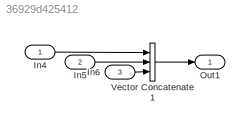
MODEL slx_36929d425412
KIND model
CONFIG AbsTol = auto
CONFIG EnableMultiTasking = on
CONFIG FixedStep = 0.1
CONFIG MaxStep = 1
CONFIG MinStep = auto
CONFIG RelTol = 1e-3
CONFIG SampleTimeConstraint = Unconstrained
CONFIG Solver = FixedStepAuto
CONFIG SolverName = FixedStepAuto
CONFIG StartTime = 0.0
CONFIG StopTime = 0
BLOCK [Inport] In4
  IconDisplay = Port number
  OutDataTypeStr = double
BLOCK [Inport] In5
  IconDisplay = Port number
  OutDataTypeStr = double
  Port = 2
  PortDimensions = 5
BLOCK [Inport] In6
  IconDisplay = Port number
  OutDataTypeStr = double
  Port = 3
BLOCK [Outport] Out1
  IconDisplay = Port number
BLOCK [Concatenate] Vector Concatenate1
  NumInputs = 3
  Ports = [3, 1]
LINE In4:1 -> Vector Concatenate1:1
LINE In5:1 -> Vector Concatenate1:2
LINE In6:1 -> Vector Concatenate1:3
LINE Vector Concatenate1:1 -> Out1:1
